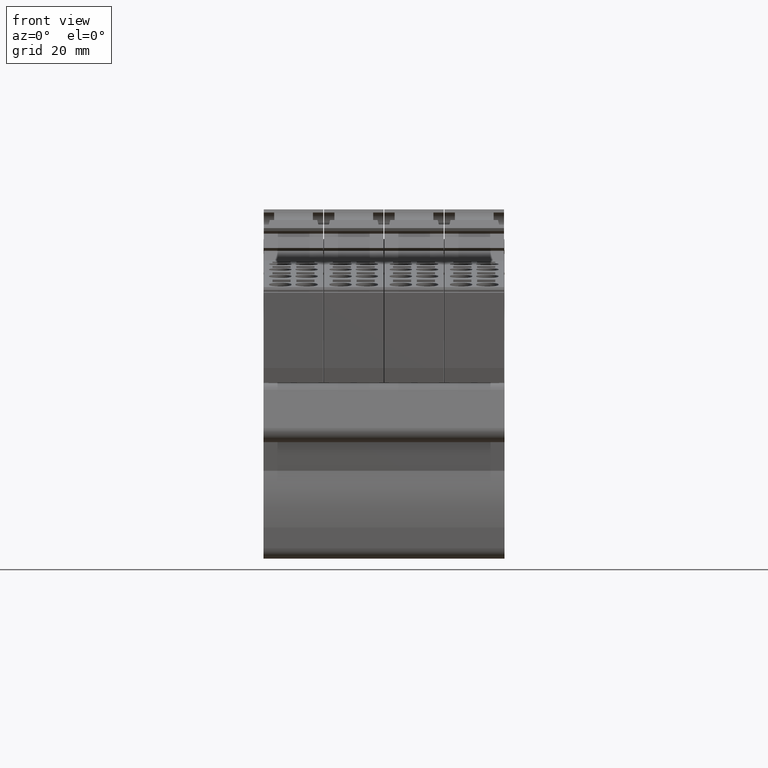
[diagram: clean part render]
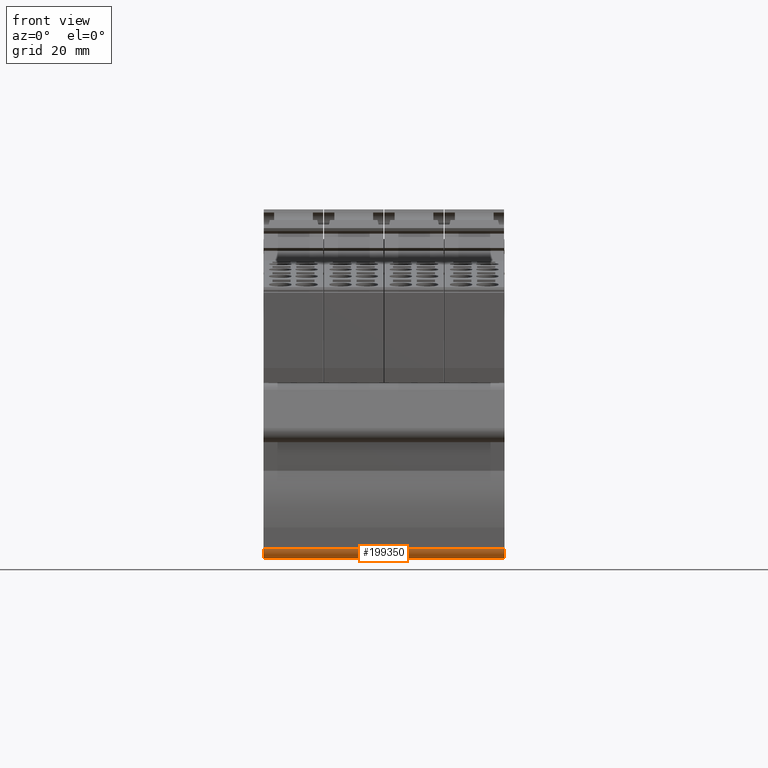
[diagram: same view with one face highlighted and labeled with its STEP entity id]
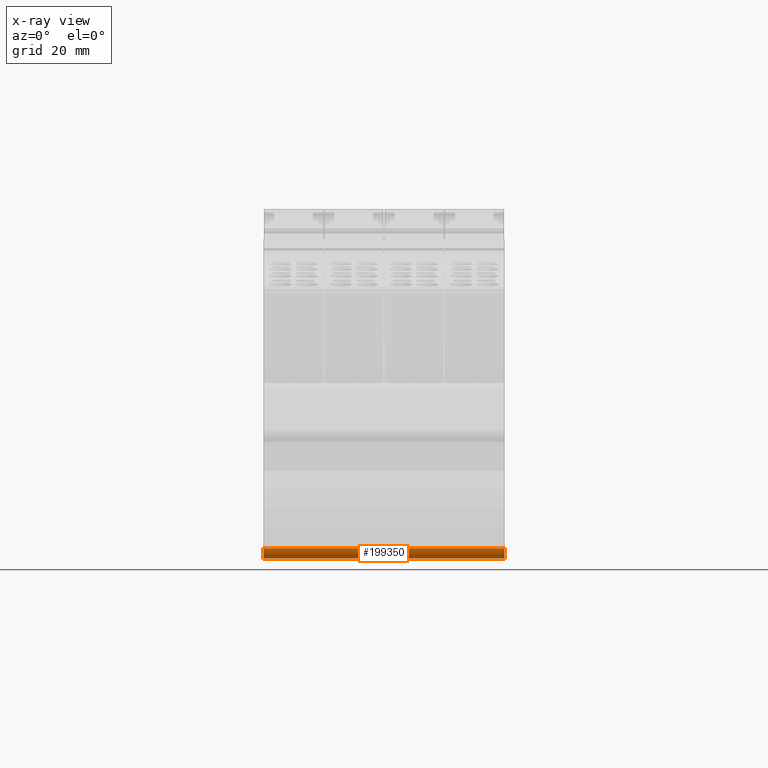
[diagram: x-ray of the same camera — body ghosted, the highlighted face saturated]
A machine part, front view. The second image highlights one B-rep face of the part: STEP entity #199350.
The next image is the same camera in x-ray: the body ghosted, the highlighted face saturated — about 0% of this face is hidden behind the body in this view.
In plain terms, the highlighted cylindrical surface (edge-blend (fillet) strip) has radius 2 mm, axis along (-1, 0, 0).
Its self-contained STEP definition (entity closure, byte-faithful):
#176840=CARTESIAN_POINT('',(178.617847465003,-62.9542780967927,36.45));
#176850=VERTEX_POINT('',#176840);
#176880=CARTESIAN_POINT('',(178.617847465003,-60.9542780967931,36.45));
#176890=DIRECTION('',(0.,0.,-1.));
#176900=DIRECTION('',(-1.,1.57772181044202E-30,0.));
#176910=AXIS2_PLACEMENT_3D('',#176880,#176890,#176900);
#176920=CIRCLE('',#176910,2.);
#176930=CARTESIAN_POINT('',(176.619751021839,-60.8670393220623,36.45));
#176940=VERTEX_POINT('',#176930);
#176950=EDGE_CURVE('',#176850,#176940,#176920,.T.);
#181400=CARTESIAN_POINT('',(176.619751021839,-60.8670393220623,-12.15));
#181410=VERTEX_POINT('',#181400);
#181440=CARTESIAN_POINT('',(178.617847465003,-60.9542780967931,-12.15));
#181450=DIRECTION('',(0.,0.,-1.));
#181460=DIRECTION('',(-1.,1.57772181044202E-30,0.));
#181470=AXIS2_PLACEMENT_3D('',#181440,#181450,#181460);
#181480=CIRCLE('',#181470,2.);
#181490=CARTESIAN_POINT('',(178.617847465003,-62.9542780967927,-12.15));
#181500=VERTEX_POINT('',#181490);
#181510=EDGE_CURVE('',#181500,#181410,#181480,.T.);
#193300=CARTESIAN_POINT('',(178.617847465003,-62.9542780967927,
6.14999999999999));
#193310=DIRECTION('',(0.,0.,1.));
#193320=VECTOR('',#193310,1.);
#193330=LINE('',#193300,#193320);
#193340=EDGE_CURVE('',#181500,#176850,#193330,.T.);
#199080=CARTESIAN_POINT('',(176.619751021839,-60.8670393220623,
6.14999999999999));
#199090=DIRECTION('',(0.,0.,1.));
#199100=VECTOR('',#199090,1.);
#199110=LINE('',#199080,#199100);
#199120=EDGE_CURVE('',#181410,#176940,#199110,.T.);
#199240=CARTESIAN_POINT('',(178.617847465003,-60.9542780967931,
6.14999999999999));
#199250=DIRECTION('',(0.,0.,-1.));
#199260=DIRECTION('',(-1.,1.57772181044202E-30,0.));
#199270=AXIS2_PLACEMENT_3D('',#199240,#199250,#199260);
#199280=CYLINDRICAL_SURFACE('',#199270,2.);
#199290=ORIENTED_EDGE('',*,*,#181510,.F.);
#199300=ORIENTED_EDGE('',*,*,#199120,.F.);
#199310=ORIENTED_EDGE('',*,*,#176950,.T.);
#199320=ORIENTED_EDGE('',*,*,#193340,.T.);
#199330=EDGE_LOOP('',(#199320,#199310,#199300,#199290));
#199340=FACE_OUTER_BOUND('',#199330,.T.);
#199350=ADVANCED_FACE('',(#199340),#199280,.T.);